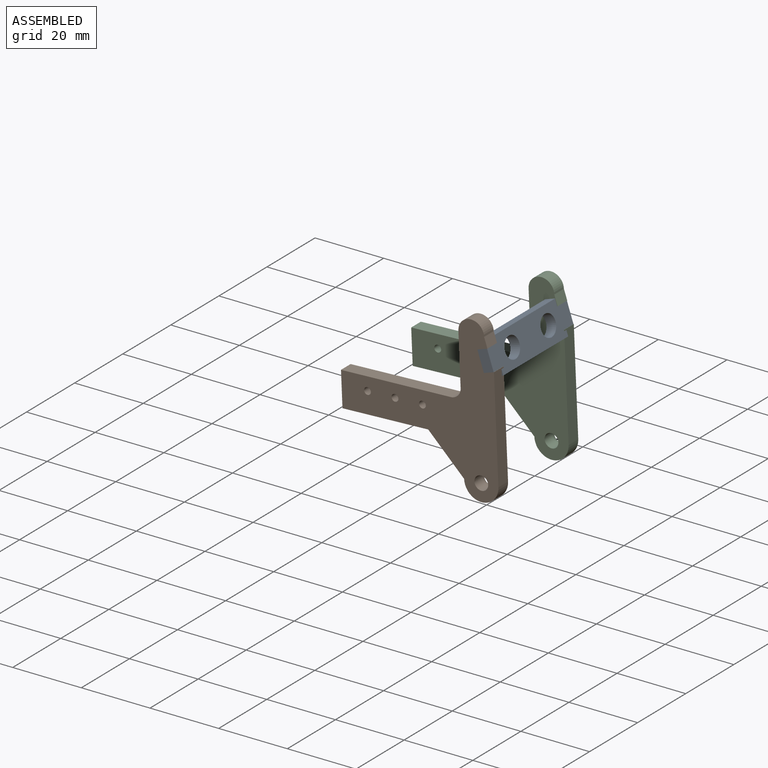
[diagram: assembled view]
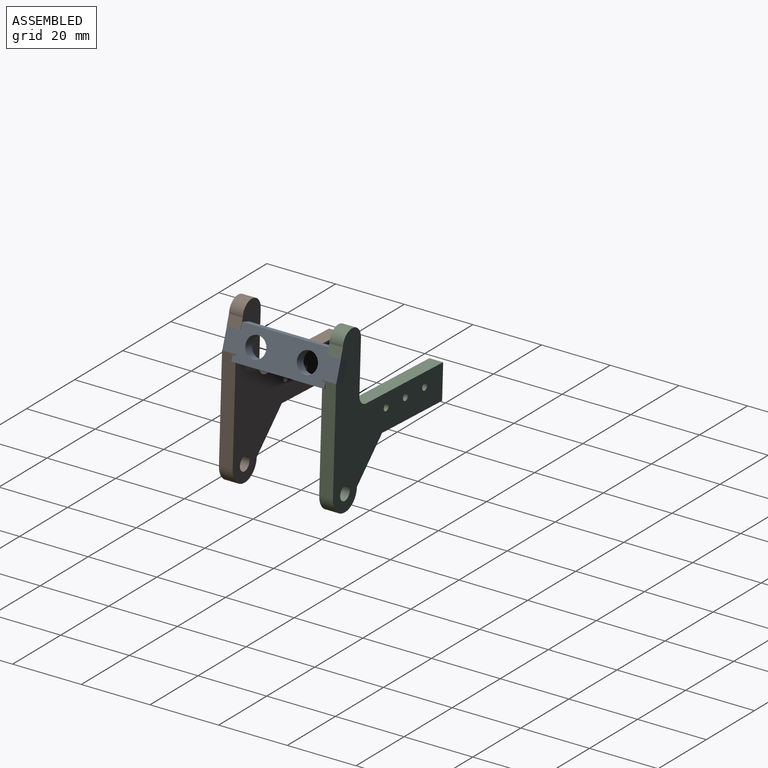
[diagram: assembled view, second angle]
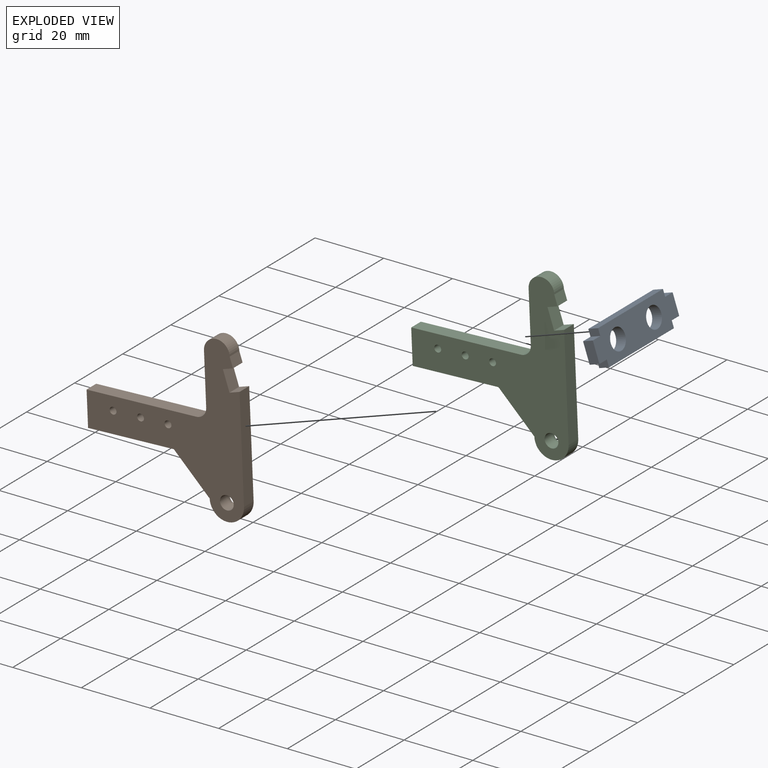
[diagram: exploded view]
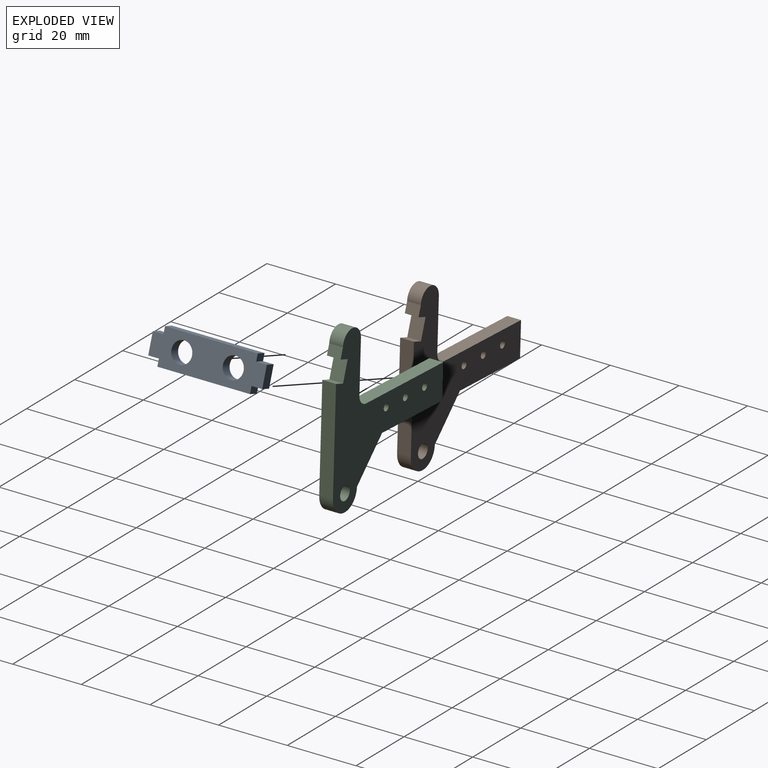
[diagram: exploded view, second angle]
ASSEMBLY  parts=3 mates=2
PART A: 16 faces, bbox 33.2x10x3 mm
  f0: plane 3x2mm, normal (1,0,0), area 6mm2, adj f1,f12,f14,f15
  f1: plane 27x3mm, normal (0,1,0), area 81mm2, adj f0,f2,f14,f15
  f2: plane 3x2mm, normal (-1,0,0), area 6mm2, adj f1,f3,f14,f15
  f3: plane 3.1x3mm, normal (0,1,0), area 9.3mm2, adj f2,f4,f14,f15
  f4: plane 6x3mm, normal (-1,0,0), area 18mm2, adj f3,f5,f14,f15
  f5: plane 3.1x3mm, normal (0,-1,0), area 9.3mm2, adj f4,f6,f14,f15
  f6: plane 3x2mm, normal (-1,0,0), area 6mm2, adj f5,f7,f14,f15
  f7: plane 27x3mm, normal (0,-1,0), area 81mm2, adj f6,f8,f14,f15
  f8: plane 3x2mm, normal (1,0,0), area 6mm2, adj f7,f9,f14,f15
  f9: plane 3.1x3mm, normal (0,-1,0), area 9.3mm2, adj f8,f10,f14,f15
  f10: plane 6x3mm, normal (1,0,0), area 18mm2, adj f9,f12,f14,f15
  f11: cylinder r=3mm len=6mm, axis (0,0,-1), area 56.5mm2, adj f14,f15
  f12: plane 3.1x3mm, normal (0,1,0), area 9.3mm2, adj f0,f10,f14,f15
  f13: cylinder r=3mm len=6mm, axis (0,0,-1), area 56.5mm2, adj f14,f15
  f14: plane 33.2x10mm, normal (0,0,1), area 250.7mm2, adj f0,f1,f2,f3,f4,f5,f6,f7
  f15: plane 33.2x10mm, normal (0,0,-1), area 250.7mm2, adj f0,f1,f2,f3,f4,f5,f6,f7
PART B: 19 faces, bbox 45x47.4x4 mm
  f0: cylinder r=3.75mm len=7.49mm, axis (0,0,-1), area 47.1mm2, adj f1,f15,f16,f17
  f1: plane 15x4mm, normal (-1,0,0), area 60mm2, adj f0,f2,f16,f17
  f2: cylinder r=3mm len=4mm, axis (0,0,-1), area 18.8mm2, adj f1,f3,f16,f17
  f3: plane 32x4mm, normal (0,1,0), area 128mm2, adj f2,f4,f16,f17
  f4: plane 10x4mm, normal (-1,0,0), area 40mm2, adj f3,f5,f16,f17
  f5: plane 25x4mm, normal (0,-1,0), area 100mm2, adj f4,f6,f16,f17
  f6: plane 10.64x10mm, normal (-0.73,-0.68,0), area 58.4mm2, adj f5,f7,f16,f17
  f7: cylinder r=5mm len=10mm, axis (0,0,-1), area 62.8mm2, adj f6,f8,f16,f17
  f8: plane 30x4mm, normal (1,0,0), area 120mm2, adj f7,f9,f16,f17
  f9: plane 4x2.98mm, normal (-0.28,0.96,0), area 12.4mm2, adj f8,f10,f16,f17
  f10: plane 5.76x4mm, normal (0.96,0.28,0), area 24mm2, adj f9,f11,f16,f17
  f11: plane 4x2.98mm, normal (0.28,-0.96,0), area 12.4mm2, adj f10,f15,f16,f17
  f12: cylinder r=1mm len=4mm, axis (0,0,-1), area 25.1mm2, adj f16,f17
  f13: cylinder r=1mm len=4mm, axis (0,0,-1), area 25.1mm2, adj f16,f17
  f14: cylinder r=1mm len=4mm, axis (0,0,-1), area 25.1mm2, adj f16,f17
  f15: plane 4x2.88mm, normal (0.96,0.28,0), area 12mm2, adj f0,f11,f16,f17
  f16: plane 47.39x45mm, normal (0,0,1), area 801.5mm2, adj f0,f1,f2,f3,f4,f5,f6,f7
  f17: plane 47.39x45mm, normal (0,0,-1), area 801.5mm2, adj f0,f1,f2,f3,f4,f5,f6,f7
  f18: cylinder r=2mm len=4mm, axis (0,0,1), area 50.3mm2, adj f16,f17
PART C: same geometry as B
PLACE A rot(axis=(-0.63,-0.63,0.45),131.3deg) t=(-4.07,-10.54,74.74)mm
PLACE B rot(axis=(1,-0.02,0.02),90deg) t=(33.88,-1.3,-28)mm fixed
PLACE C rot(axis=(1,-0.02,0.02),90deg) t=(33.88,27.9,-28)mm
MATE fastened A.f14 <-> C.f10  axis (-0.95,0,-0.32) through (9.98,27.9,23.76)mm
MATE fastened B.f10 <-> A.f14  axis (0.95,0,0.32) through (9.98,-5.3,23.76)mm
